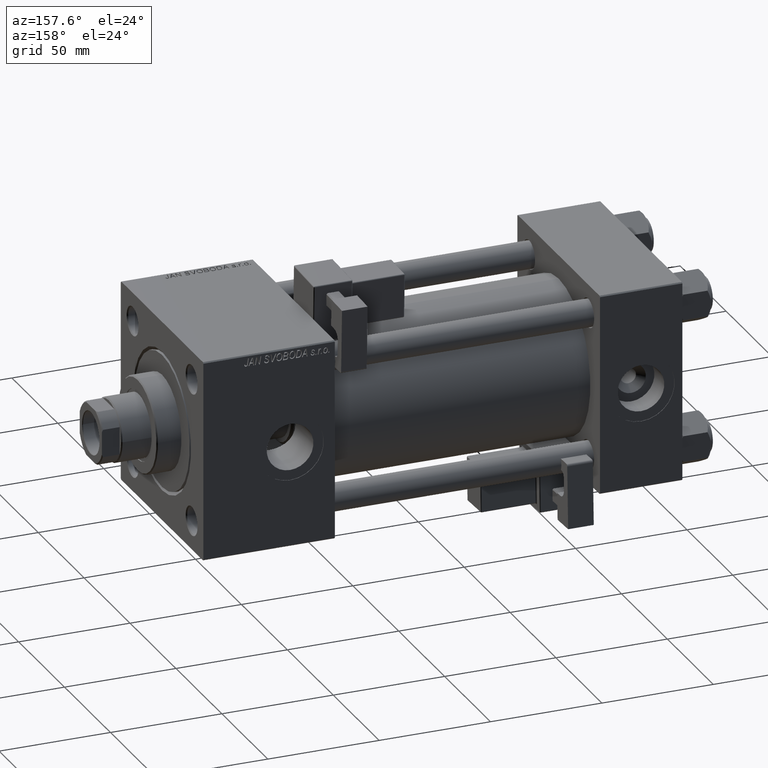
[diagram: clean part render]
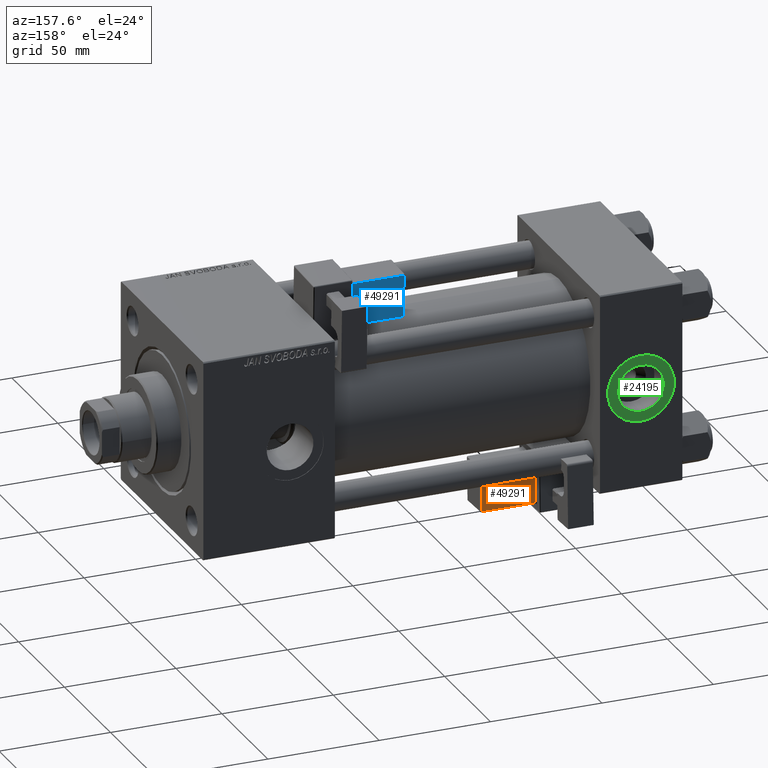
[diagram: same view with three faces highlighted in distinct colors, each labeled with its STEP entity id]
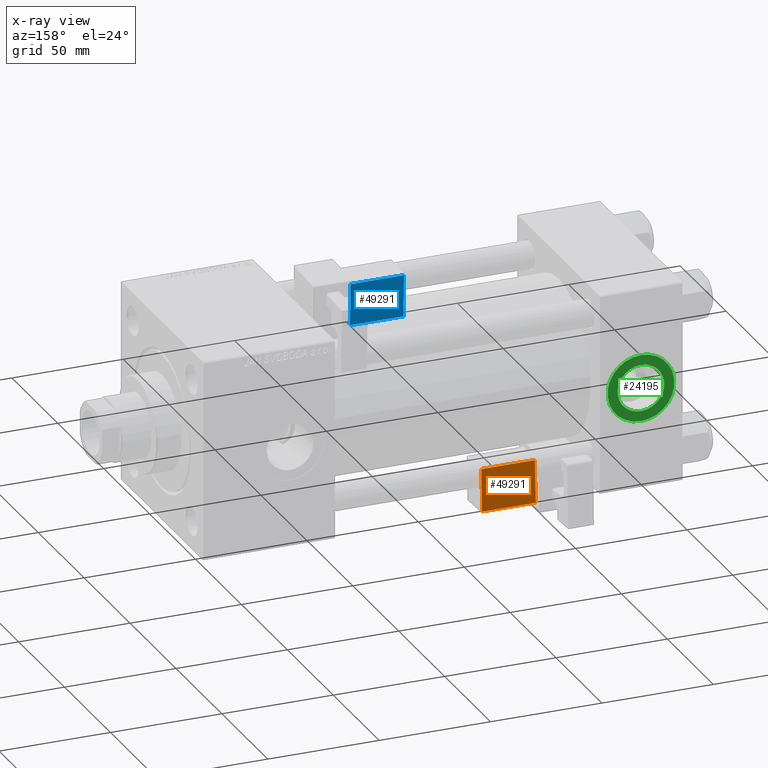
[diagram: x-ray of the same camera — body ghosted, the three highlighted faces saturated]
A machine part, auxiliary view with three faces highlighted in distinct colors.
The next image is the same camera in x-ray (body ghosted, the three faces saturated) — at least one of them is partly hidden behind the body in this view.
Their STEP definitions:

[orange] entity #49291 — the highlighted planar face has unit normal (0, -0.9994, -0.0353).
#1 = DIRECTION ( 'NONE',  ( 0.000000000000000000, -0.000000000000000000, -1.000000000000000000 ) ) ;
#457 = LINE ( 'NONE', #37815, #12918 ) ;
#1005 = VECTOR ( 'NONE', #23115, 1000.000000000000000 ) ;
#1226 = EDGE_CURVE ( 'NONE', #43786, #35571, #457, .T. ) ;
#1281 = DIRECTION ( 'NONE',  ( 0.000000000000000000, -1.000000000000000000, 0.000000000000000000 ) ) ;
#1491 = ORIENTED_EDGE ( 'NONE', *, *, #1226, .T. ) ;
#2540 = ORIENTED_EDGE ( 'NONE', *, *, #3730, .T. ) ;
#2907 = ORIENTED_EDGE ( 'NONE', *, *, #45848, .T. ) ;
#3730 = EDGE_CURVE ( 'NONE', #26709, #43786, #31413, .T. ) ;
#6779 = CARTESIAN_POINT ( 'NONE',  ( 9.250000000000001776, -21.24999999999999645, 22.00000000000000711 ) ) ;
#12480 = EDGE_CURVE ( 'NONE', #35571, #16101, #44493, .T. ) ;
#12909 = CARTESIAN_POINT ( 'NONE',  ( 9.250000000000001776, -21.24999999999999645, 21.50000000000000355 ) ) ;
#12918 = VECTOR ( 'NONE', #17781, 1000.000000000000000 ) ;
#16101 = VERTEX_POINT ( 'NONE', #22789 ) ;
#17781 = DIRECTION ( 'NONE',  ( 1.000000000000000000, -0.000000000000000000, 1.334402673828313339E-16 ) ) ;
#18450 = ORIENTED_EDGE ( 'NONE', *, *, #12480, .T. ) ;
#22060 = LINE ( 'NONE', #43433, #33768 ) ;
#22789 = CARTESIAN_POINT ( 'NONE',  ( 33.25000000000000000, -21.24999999999999645, 2.500000000000009326 ) ) ;
#23115 = DIRECTION ( 'NONE',  ( 1.734723475976807587E-16, -0.000000000000000000, -1.000000000000000000 ) ) ;
#24173 = DIRECTION ( 'NONE',  ( -1.000000000000000000, 0.000000000000000000, -1.334402673828313339E-16 ) ) ;
#26709 = VERTEX_POINT ( 'NONE', #49203 ) ;
#29109 = EDGE_LOOP ( 'NONE', ( #2907, #2540, #1491, #18450 ) ) ;
#31413 = LINE ( 'NONE', #6779, #35527 ) ;
#31750 = CARTESIAN_POINT ( 'NONE',  ( 33.25000000000000000, -21.24999999999999645, 2.000000000000010214 ) ) ;
#32761 = FACE_OUTER_BOUND ( 'NONE', #29109, .T. ) ;
#33768 = VECTOR ( 'NONE', #24173, 1000.000000000000000 ) ;
#35527 = VECTOR ( 'NONE', #44941, 1000.000000000000000 ) ;
#35571 = VERTEX_POINT ( 'NONE', #36486 ) ;
#36486 = CARTESIAN_POINT ( 'NONE',  ( 33.25000000000000000, -21.24999999999999645, 21.50000000000000711 ) ) ;
#37815 = CARTESIAN_POINT ( 'NONE',  ( 33.75000000000000000, -21.24999999999999645, 21.50000000000000711 ) ) ;
#40624 = PLANE ( 'NONE',  #41643 ) ;
#41643 = AXIS2_PLACEMENT_3D ( 'NONE', #45241, #1281, #1 ) ;
#43433 = CARTESIAN_POINT ( 'NONE',  ( 33.75000000000000000, -21.24999999999999645, 2.500000000000009326 ) ) ;
#43786 = VERTEX_POINT ( 'NONE', #12909 ) ;
#44493 = LINE ( 'NONE', #31750, #1005 ) ;
#44941 = DIRECTION ( 'NONE',  ( -1.334402673828313339E-16, 0.000000000000000000, 1.000000000000000000 ) ) ;
#45241 = CARTESIAN_POINT ( 'NONE',  ( 33.75000000000000000, -21.24999999999999645, 22.00000000000001066 ) ) ;
#45848 = EDGE_CURVE ( 'NONE', #16101, #26709, #22060, .T. ) ;
#49203 = CARTESIAN_POINT ( 'NONE',  ( 9.250000000000005329, -21.24999999999999645, 2.500000000000005773 ) ) ;
#49291 = ADVANCED_FACE ( 'NONE', ( #32761 ), #40624, .F. ) ;

[blue] entity #49291 — the highlighted planar face has unit normal (-0, -0.9994, 0.0353).
#1 = DIRECTION ( 'NONE',  ( 0.000000000000000000, -0.000000000000000000, -1.000000000000000000 ) ) ;
#457 = LINE ( 'NONE', #37815, #12918 ) ;
#1005 = VECTOR ( 'NONE', #23115, 1000.000000000000000 ) ;
#1226 = EDGE_CURVE ( 'NONE', #43786, #35571, #457, .T. ) ;
#1281 = DIRECTION ( 'NONE',  ( 0.000000000000000000, -1.000000000000000000, 0.000000000000000000 ) ) ;
#1491 = ORIENTED_EDGE ( 'NONE', *, *, #1226, .T. ) ;
#2540 = ORIENTED_EDGE ( 'NONE', *, *, #3730, .T. ) ;
#2907 = ORIENTED_EDGE ( 'NONE', *, *, #45848, .T. ) ;
#3730 = EDGE_CURVE ( 'NONE', #26709, #43786, #31413, .T. ) ;
#6779 = CARTESIAN_POINT ( 'NONE',  ( 9.250000000000001776, -21.24999999999999645, 22.00000000000000711 ) ) ;
#12480 = EDGE_CURVE ( 'NONE', #35571, #16101, #44493, .T. ) ;
#12909 = CARTESIAN_POINT ( 'NONE',  ( 9.250000000000001776, -21.24999999999999645, 21.50000000000000355 ) ) ;
#12918 = VECTOR ( 'NONE', #17781, 1000.000000000000000 ) ;
#16101 = VERTEX_POINT ( 'NONE', #22789 ) ;
#17781 = DIRECTION ( 'NONE',  ( 1.000000000000000000, -0.000000000000000000, 1.334402673828313339E-16 ) ) ;
#18450 = ORIENTED_EDGE ( 'NONE', *, *, #12480, .T. ) ;
#22060 = LINE ( 'NONE', #43433, #33768 ) ;
#22789 = CARTESIAN_POINT ( 'NONE',  ( 33.25000000000000000, -21.24999999999999645, 2.500000000000009326 ) ) ;
#23115 = DIRECTION ( 'NONE',  ( 1.734723475976807587E-16, -0.000000000000000000, -1.000000000000000000 ) ) ;
#24173 = DIRECTION ( 'NONE',  ( -1.000000000000000000, 0.000000000000000000, -1.334402673828313339E-16 ) ) ;
#26709 = VERTEX_POINT ( 'NONE', #49203 ) ;
#29109 = EDGE_LOOP ( 'NONE', ( #2907, #2540, #1491, #18450 ) ) ;
#31413 = LINE ( 'NONE', #6779, #35527 ) ;
#31750 = CARTESIAN_POINT ( 'NONE',  ( 33.25000000000000000, -21.24999999999999645, 2.000000000000010214 ) ) ;
#32761 = FACE_OUTER_BOUND ( 'NONE', #29109, .T. ) ;
#33768 = VECTOR ( 'NONE', #24173, 1000.000000000000000 ) ;
#35527 = VECTOR ( 'NONE', #44941, 1000.000000000000000 ) ;
#35571 = VERTEX_POINT ( 'NONE', #36486 ) ;
#36486 = CARTESIAN_POINT ( 'NONE',  ( 33.25000000000000000, -21.24999999999999645, 21.50000000000000711 ) ) ;
#37815 = CARTESIAN_POINT ( 'NONE',  ( 33.75000000000000000, -21.24999999999999645, 21.50000000000000711 ) ) ;
#40624 = PLANE ( 'NONE',  #41643 ) ;
#41643 = AXIS2_PLACEMENT_3D ( 'NONE', #45241, #1281, #1 ) ;
#43433 = CARTESIAN_POINT ( 'NONE',  ( 33.75000000000000000, -21.24999999999999645, 2.500000000000009326 ) ) ;
#43786 = VERTEX_POINT ( 'NONE', #12909 ) ;
#44493 = LINE ( 'NONE', #31750, #1005 ) ;
#44941 = DIRECTION ( 'NONE',  ( -1.334402673828313339E-16, 0.000000000000000000, 1.000000000000000000 ) ) ;
#45241 = CARTESIAN_POINT ( 'NONE',  ( 33.75000000000000000, -21.24999999999999645, 22.00000000000001066 ) ) ;
#45848 = EDGE_CURVE ( 'NONE', #16101, #26709, #22060, .T. ) ;
#49203 = CARTESIAN_POINT ( 'NONE',  ( 9.250000000000005329, -21.24999999999999645, 2.500000000000005773 ) ) ;
#49291 = ADVANCED_FACE ( 'NONE', ( #32761 ), #40624, .F. ) ;

[green] entity #24195 — the highlighted planar face has unit normal (0, 1, 0).
#418 = EDGE_CURVE ( 'NONE', #26391, #1863, #7740, .T. ) ;
#1543 = FACE_BOUND ( 'NONE', #11579, .T. ) ;
#1863 = VERTEX_POINT ( 'NONE', #51954 ) ;
#2185 = VERTEX_POINT ( 'NONE', #22092 ) ;
#2549 = CIRCLE ( 'NONE', #38893, 15.00000000000000178 ) ;
#4472 = CIRCLE ( 'NONE', #34745, 15.00000000000000178 ) ;
#5384 = DIRECTION ( 'NONE',  ( 0.000000000000000000, 0.000000000000000000, 1.000000000000000000 ) ) ;
#5662 = CARTESIAN_POINT ( 'NONE',  ( 18.50000000000000000, 44.79999999999998295, 0.000000000000000000 ) ) ;
#5755 = FACE_OUTER_BOUND ( 'NONE', #39896, .T. ) ;
#7740 = CIRCLE ( 'NONE', #35414, 10.48000000000000043 ) ;
#10243 = ORIENTED_EDGE ( 'NONE', *, *, #12082, .F. ) ;
#11579 = EDGE_LOOP ( 'NONE', ( #45134, #10243 ) ) ;
#11935 = CARTESIAN_POINT ( 'NONE',  ( 18.50000000000000000, 44.79999999999998295, 0.000000000000000000 ) ) ;
#12082 = EDGE_CURVE ( 'NONE', #1863, #26391, #27822, .T. ) ;
#16257 = DIRECTION ( 'NONE',  ( 0.000000000000000000, 0.000000000000000000, 1.000000000000000000 ) ) ;
#16407 = ORIENTED_EDGE ( 'NONE', *, *, #43726, .T. ) ;
#17932 = DIRECTION ( 'NONE',  ( 0.000000000000000000, -0.000000000000000000, 1.000000000000000000 ) ) ;
#20501 = VERTEX_POINT ( 'NONE', #30808 ) ;
#22092 = CARTESIAN_POINT ( 'NONE',  ( 18.50000000000000355, 44.79999999999998295, -15.00000000000000178 ) ) ;
#24195 = ADVANCED_FACE ( 'NONE', ( #1543, #5755 ), #38520, .T. ) ;
#26391 = VERTEX_POINT ( 'NONE', #49269 ) ;
#27822 = CIRCLE ( 'NONE', #40770, 10.48000000000000043 ) ;
#28342 = CARTESIAN_POINT ( 'NONE',  ( 18.50000000000000000, 44.79999999999998295, 0.000000000000000000 ) ) ;
#28881 = DIRECTION ( 'NONE',  ( 0.000000000000000000, 1.000000000000000000, 0.000000000000000000 ) ) ;
#29680 = CARTESIAN_POINT ( 'NONE',  ( 18.50000000000000000, 44.79999999999998295, 0.000000000000000000 ) ) ;
#29702 = DIRECTION ( 'NONE',  ( 0.000000000000000000, 1.000000000000000000, 0.000000000000000000 ) ) ;
#30274 = DIRECTION ( 'NONE',  ( 0.000000000000000000, 1.000000000000000000, 0.000000000000000000 ) ) ;
#30808 = CARTESIAN_POINT ( 'NONE',  ( 18.50000000000000000, 44.79999999999998295, 15.00000000000000178 ) ) ;
#34745 = AXIS2_PLACEMENT_3D ( 'NONE', #11935, #29702, #16257 ) ;
#35414 = AXIS2_PLACEMENT_3D ( 'NONE', #5662, #30274, #5384 ) ;
#36500 = ORIENTED_EDGE ( 'NONE', *, *, #49275, .T. ) ;
#38520 = PLANE ( 'NONE',  #45418 ) ;
#38893 = AXIS2_PLACEMENT_3D ( 'NONE', #28342, #28881, #44876 ) ;
#39896 = EDGE_LOOP ( 'NONE', ( #16407, #36500 ) ) ;
#40770 = AXIS2_PLACEMENT_3D ( 'NONE', #29680, #46226, #47304 ) ;
#42567 = DIRECTION ( 'NONE',  ( 0.000000000000000000, 1.000000000000000000, 0.000000000000000000 ) ) ;
#43104 = CARTESIAN_POINT ( 'NONE',  ( 18.50000000000000000, 44.79999999999998295, 0.000000000000000000 ) ) ;
#43726 = EDGE_CURVE ( 'NONE', #20501, #2185, #2549, .T. ) ;
#44876 = DIRECTION ( 'NONE',  ( 0.000000000000000000, 0.000000000000000000, 1.000000000000000000 ) ) ;
#45134 = ORIENTED_EDGE ( 'NONE', *, *, #418, .F. ) ;
#45418 = AXIS2_PLACEMENT_3D ( 'NONE', #43104, #42567, #17932 ) ;
#46226 = DIRECTION ( 'NONE',  ( 0.000000000000000000, 1.000000000000000000, 0.000000000000000000 ) ) ;
#47304 = DIRECTION ( 'NONE',  ( 0.000000000000000000, 0.000000000000000000, 1.000000000000000000 ) ) ;
#49269 = CARTESIAN_POINT ( 'NONE',  ( 18.50000000000000000, 44.79999999999998295, 10.48000000000000043 ) ) ;
#49275 = EDGE_CURVE ( 'NONE', #2185, #20501, #4472, .T. ) ;
#51954 = CARTESIAN_POINT ( 'NONE',  ( 18.50000000000000000, 44.79999999999998295, -10.48000000000000043 ) ) ;